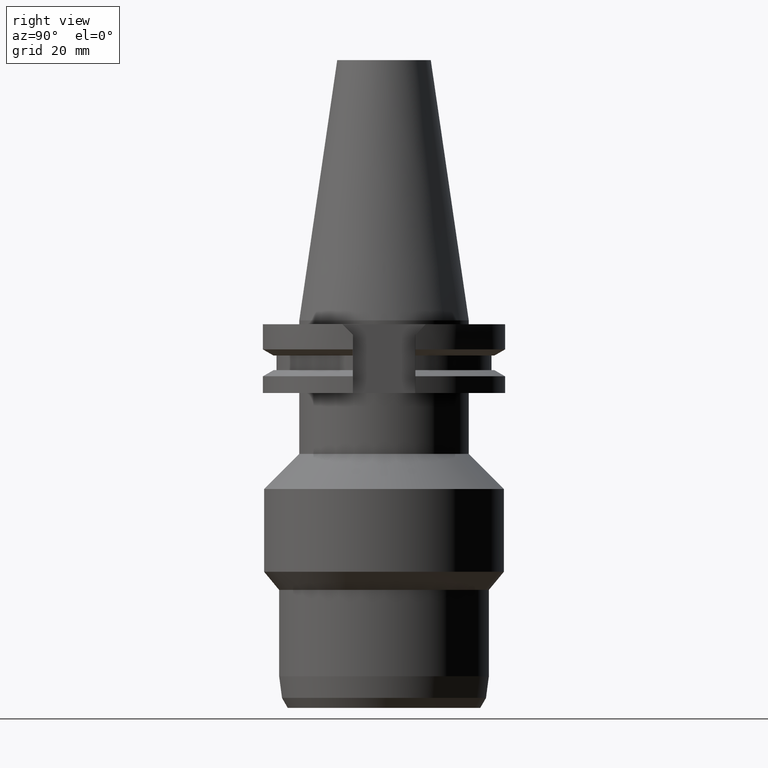
[diagram: clean part render]
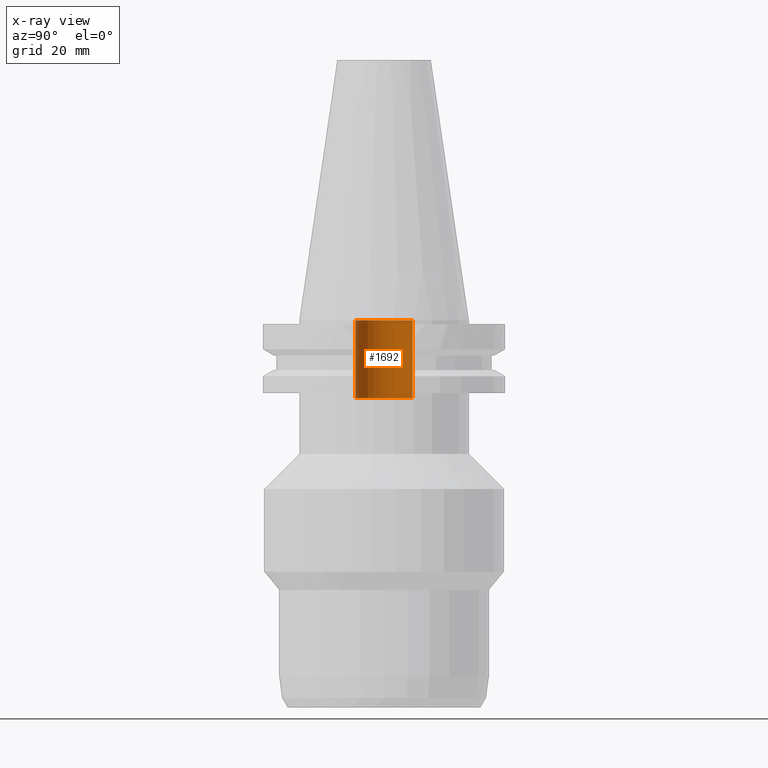
[diagram: x-ray — body ghosted, one internal face saturated and labeled with its STEP entity id]
A machine part, right view, then the same camera in x-ray: the body is ghosted and one INTERNAL B-rep face — a face not visible from any outside direction — is saturated and labeled: STEP entity #1692.
In plain terms, the highlighted cylindrical surface (edge-blend (fillet) strip) has radius 7.5 mm, axis along (0, 0, -1).
Its self-contained STEP definition (entity closure, byte-faithful):
#194=DIRECTION('',(0.E0,0.E0,1.E0));
#195=VECTOR('',#194,2.04E1);
#196=CARTESIAN_POINT('',(0.E0,-7.5E0,-2.04E1));
#197=LINE('',#196,#195);
#201=CARTESIAN_POINT('',(0.E0,2.164471368983E-14,8.526512829121E-14));
#202=DIRECTION('',(0.E0,0.E0,-1.E0));
#203=DIRECTION('',(0.E0,-1.E0,0.E0));
#204=AXIS2_PLACEMENT_3D('',#201,#202,#203);
#209=DIRECTION('',(0.E0,0.E0,1.E0));
#210=VECTOR('',#209,2.04E1);
#211=CARTESIAN_POINT('',(0.E0,7.5E0,-2.04E1));
#212=LINE('',#211,#210);
#232=CARTESIAN_POINT('',(0.E0,2.164471368983E-14,-2.04E1));
#233=DIRECTION('',(0.E0,0.E0,-1.E0));
#234=DIRECTION('',(0.E0,-1.E0,0.E0));
#235=AXIS2_PLACEMENT_3D('',#232,#233,#234);
#1330=CARTESIAN_POINT('',(0.E0,7.5E0,9.947598300641E-14));
#1331=VERTEX_POINT('',#1330);
#1332=CARTESIAN_POINT('',(0.E0,-7.5E0,9.947598300641E-14));
#1333=VERTEX_POINT('',#1332);
#1334=CARTESIAN_POINT('',(0.E0,7.5E0,-2.04E1));
#1335=VERTEX_POINT('',#1334);
#1336=CARTESIAN_POINT('',(0.E0,-7.5E0,-2.04E1));
#1337=VERTEX_POINT('',#1336);
#1678=CARTESIAN_POINT('',(0.E0,2.164471368983E-14,7.67425E1));
#1679=DIRECTION('',(0.E0,0.E0,-1.E0));
#1680=DIRECTION('',(0.E0,-1.E0,0.E0));
#1681=AXIS2_PLACEMENT_3D('',#1678,#1679,#1680);
#1682=CYLINDRICAL_SURFACE('',#1681,7.5E0);
#1684=ORIENTED_EDGE('',*,*,#1683,.F.);
#1686=ORIENTED_EDGE('',*,*,#1685,.F.);
#1688=ORIENTED_EDGE('',*,*,#1687,.T.);
#1689=ORIENTED_EDGE('',*,*,#1671,.T.);
#1690=EDGE_LOOP('',(#1684,#1686,#1688,#1689));
#1691=FACE_OUTER_BOUND('',#1690,.F.);
#205=CIRCLE('',#204,7.5E0);
#236=CIRCLE('',#235,7.5E0);
#1671=EDGE_CURVE('',#1333,#1331,#205,.T.);
#1683=EDGE_CURVE('',#1335,#1331,#212,.T.);
#1685=EDGE_CURVE('',#1337,#1335,#236,.T.);
#1687=EDGE_CURVE('',#1337,#1333,#197,.T.);
#1692=ADVANCED_FACE('',(#1691),#1682,.F.);